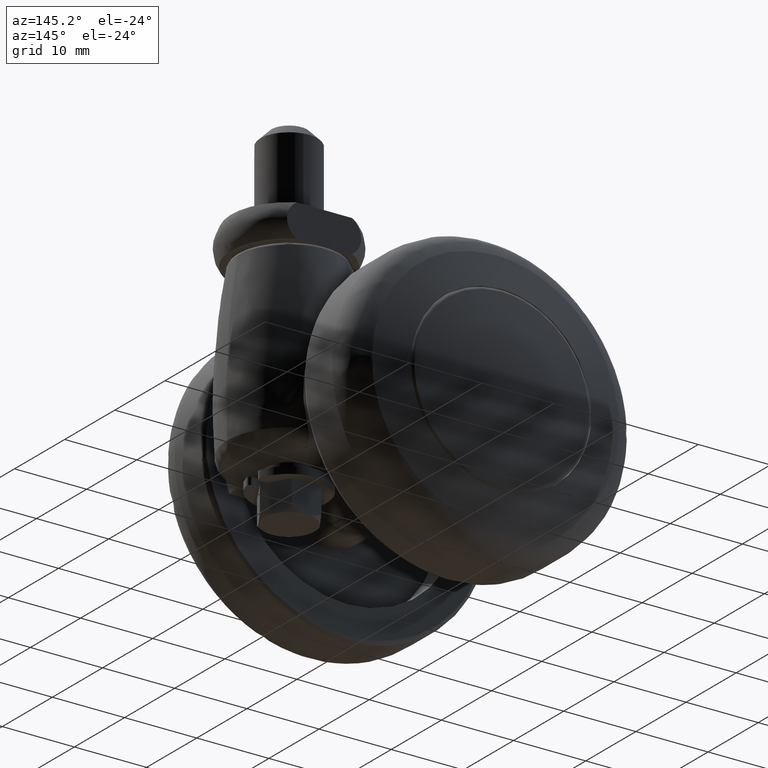
[diagram: clean part render]
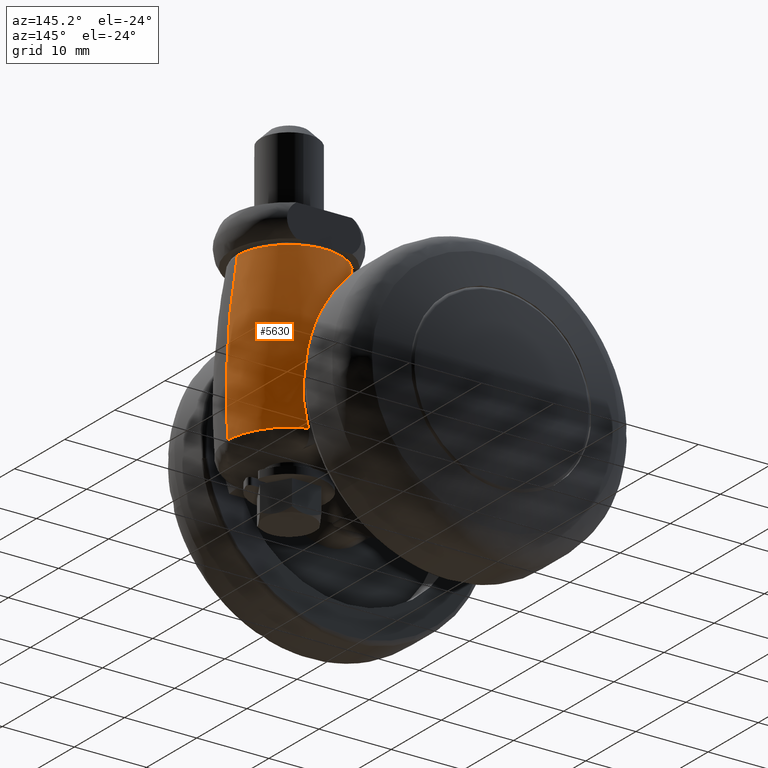
[diagram: same view with one face highlighted and labeled with its STEP entity id]
A machine part, auxiliary view. The second image highlights one B-rep face of the part: STEP entity #5630.
In plain terms, the highlighted face is a freeform B-spline surface patch.
Its self-contained STEP definition (entity closure, byte-faithful):
#4586=CARTESIAN_POINT('',(9.439659694454559,4.521665346927680,18.587814212277301));
#4587=VERTEX_POINT('',#4586);
#4588=CARTESIAN_POINT('',(19.366691423274499,5.682884361773896,18.587715903118639));
#4589=VERTEX_POINT('',#4588);
#4590=CARTESIAN_POINT('',(9.439659694454559,4.521665346927680,18.587814212277301));
#4591=CARTESIAN_POINT('',(12.626187312506072,8.440178779645013,18.587795519163723));
#4592=CARTESIAN_POINT('',(17.388143074723288,6.757211092079039,18.587740234210660));
#4593=CARTESIAN_POINT('',(18.462851126035574,6.377388385980773,18.587727757155616));
#4594=CARTESIAN_POINT('',(19.366691423274506,5.682884361773896,18.587715903118635));
#4602=(BOUNDED_CURVE()B_SPLINE_CURVE(2,(#4590,#4591,#4592,#4593,#4594),.UNSPECIFIED.,.F.,.U.)B_SPLINE_CURVE_WITH_KNOTS((3,2,3),(0.0,0.250000000000000,0.315711812130003),.UNSPECIFIED.)CURVE()GEOMETRIC_REPRESENTATION_ITEM()RATIONAL_B_SPLINE_CURVE((1.0,0.817414323401201,1.0,0.952007857286841,0.929244919899149))REPRESENTATION_ITEM(''));
#4603=EDGE_CURVE('',#4587,#4589,#4602,.T.);
#4632=CARTESIAN_POINT('',(22.166813595573341,0.000018812376593,18.587667433410850));
#4633=VERTEX_POINT('',#4632);
#4649=CARTESIAN_POINT('',(22.071394226125420,1.165590244444835,18.587672524794289));
#4650=VERTEX_POINT('',#4649);
#4651=CARTESIAN_POINT('',(22.071394226125427,1.165590244444835,18.587672524794293));
#4652=CARTESIAN_POINT('',(22.164877195601136,0.598451051408435,18.587669630397315));
#4653=CARTESIAN_POINT('',(22.166774549913359,0.023661910632597,18.587667519826692));
#4654=CARTESIAN_POINT('',(22.166813572233810,0.011840393745363,18.587667476419210));
#4655=CARTESIAN_POINT('',(22.166813595573338,0.000018812376593,18.587667433410854));
#4663=(BOUNDED_CURVE()B_SPLINE_CURVE(2,(#4651,#4652,#4653,#4654,#4655),.UNSPECIFIED.,.F.,.U.)B_SPLINE_CURVE_WITH_KNOTS((3,2,3),(0.466056054314651,0.500000000000000,0.500715487659152),.UNSPECIFIED.)CURVE()GEOMETRIC_REPRESENTATION_ITEM()RATIONAL_B_SPLINE_CURVE((0.957150530652234,0.975209286842431,1.0,0.999477448806623,0.998957888644687))REPRESENTATION_ITEM(''));
#4664=EDGE_CURVE('',#4650,#4633,#4663,.T.);
#4763=CARTESIAN_POINT('',(19.366691423274506,5.682884361773896,18.587715903118635));
#4764=CARTESIAN_POINT('',(21.611062765639634,3.958330575421769,18.587687022575292));
#4765=CARTESIAN_POINT('',(22.071394226125427,1.165590244444835,18.587672524794293));
#4773=(BOUNDED_CURVE()B_SPLINE_CURVE(2,(#4763,#4764,#4765),.UNSPECIFIED.,.F.,.U.)B_SPLINE_CURVE_WITH_KNOTS((3,3),(0.315711812130003,0.466056054314651),.UNSPECIFIED.)CURVE()GEOMETRIC_REPRESENTATION_ITEM()RATIONAL_B_SPLINE_CURVE((0.929244919899149,0.877164837787297,0.957150530652234))REPRESENTATION_ITEM(''));
#4774=EDGE_CURVE('',#4589,#4650,#4773,.T.);
#5540=CARTESIAN_POINT('',(7.798400208376606,4.459132842226264,-5.936490401840427));
#5541=CARTESIAN_POINT('',(7.027441817313171,4.936499813601098,6.996166363190534));
#5542=CARTESIAN_POINT('',(9.085848509317575,3.661962329075581,19.732507406012164));
#5543=CARTESIAN_POINT('',(10.282094210385374,8.470354494549271,-5.936490401840427));
#5544=CARTESIAN_POINT('',(9.777024620017281,9.377137856830858,6.996166363190534));
#5545=CARTESIAN_POINT('',(11.125526221131654,6.956087690240100,19.732507406012161));
#5546=CARTESIAN_POINT('',(15.000000000000007,8.470354494549270,-5.936490401840425));
#5547=CARTESIAN_POINT('',(14.999999999999996,9.377137856830858,6.996166363190535));
#5548=CARTESIAN_POINT('',(15.000000000000002,6.956087690240099,19.732507406012168));
#5549=CARTESIAN_POINT('',(23.470354494549273,8.470354494549273,-5.936490401840427));
#5550=CARTESIAN_POINT('',(24.377137856830867,9.377137856830858,6.996166363190533));
#5551=CARTESIAN_POINT('',(21.956087690240093,6.956087690240097,19.732507406012164));
#5552=CARTESIAN_POINT('',(23.470354494549280,0.0,-5.936490401840425));
#5553=CARTESIAN_POINT('',(24.377137856830860,0.0,6.996166363190535));
#5554=CARTESIAN_POINT('',(21.956087690240100,0.0,19.732507406012168));
#5562=(BOUNDED_SURFACE()B_SPLINE_SURFACE(2,2,((#5540,#5543,#5546,#5549,#5552),(#5541,#5544,#5547,#5550,#5553),(#5542,#5545,#5548,#5551,#5554)),.UNSPECIFIED.,.F.,.F.,.U.)B_SPLINE_SURFACE_WITH_KNOTS((3,3),(3,2,3),(0.0,25.820677454513731),(0.0,9.056522534625486,23.206494211976800),.UNSPECIFIED.)GEOMETRIC_REPRESENTATION_ITEM()RATIONAL_B_SPLINE_SURFACE(((0.828360132667258,0.778082569156552,0.957596302396225,0.677122839063534,0.957596302396225),(0.824616804808810,0.774566443690786,0.953268961213876,0.674062946768988,0.953268961213876),(0.834687579361808,0.784025969600565,0.964910922353611,0.682295056437204,0.964910922353611)))REPRESENTATION_ITEM('')SURFACE());
#5563=ORIENTED_EDGE('',*,*,#4603,.T.);
#5564=ORIENTED_EDGE('',*,*,#4774,.T.);
#5565=ORIENTED_EDGE('',*,*,#4664,.T.);
#5566=CARTESIAN_POINT('',(23.545500375795619,0.000000415544947,-4.766490020556413));
#5567=VERTEX_POINT('',#5566);
#5568=CARTESIAN_POINT('',(23.545500375795616,0.000000415544947,-4.766490020556413));
#5569=CARTESIAN_POINT('',(24.231514440257477,0.000009613960770,6.991781408170732));
#5570=CARTESIAN_POINT('',(22.166813595573341,0.000018812376593,18.587667433410854));
#5578=(BOUNDED_CURVE()B_SPLINE_CURVE(2,(#5568,#5569,#5570),.UNSPECIFIED.,.F.,.U.)B_SPLINE_CURVE_WITH_KNOTS((3,3),(0.431725213207381,0.706914619218559),.UNSPECIFIED.)CURVE()GEOMETRIC_REPRESENTATION_ITEM()RATIONAL_B_SPLINE_CURVE((0.957236199646177,0.953961265613268,0.963886331076210))REPRESENTATION_ITEM(''));
#5579=EDGE_CURVE('',#5567,#4633,#5578,.T.);
#5580=ORIENTED_EDGE('',*,*,#5579,.F.);
#5581=CARTESIAN_POINT('',(17.914251238854799,8.033225897666430,-4.766488081632760));
#5582=VERTEX_POINT('',#5581);
#5583=CARTESIAN_POINT('',(17.914251238854799,8.033225897666430,-4.766488081632760));
#5584=CARTESIAN_POINT('',(23.545500141062210,5.990351159242977,-4.766489051094587));
#5585=CARTESIAN_POINT('',(23.545500375795612,0.000000415544947,-4.766490020556413));
#5593=(BOUNDED_CURVE()B_SPLINE_CURVE(2,(#5583,#5584,#5585),.UNSPECIFIED.,.F.,.U.)B_SPLINE_CURVE_WITH_KNOTS((3,3),(0.0,0.499999978821383),.UNSPECIFIED.)CURVE()GEOMETRIC_REPRESENTATION_ITEM()RATIONAL_B_SPLINE_CURVE((1.0,0.818849067880137,0.999999984653895))REPRESENTATION_ITEM(''));
#5594=EDGE_CURVE('',#5582,#5567,#5593,.T.);
#5595=ORIENTED_EDGE('',*,*,#5594,.F.);
#5596=CARTESIAN_POINT('',(17.914251238854799,8.033225897666430,-4.766488081632760));
#5597=CARTESIAN_POINT('',(17.964849374519659,8.026159747255266,-4.574496176285883));
#5598=CARTESIAN_POINT('',(18.065844856950310,8.012055487081923,-4.191274248274103));
#5599=CARTESIAN_POINT('',(18.193612815433170,7.992507981132593,-3.611558182650756));
#5600=CARTESIAN_POINT('',(18.303447948100320,7.975362582786659,-3.029994953211256));
#5601=CARTESIAN_POINT('',(18.393666552494050,7.961410821290309,-2.446152684390178));
#5602=CARTESIAN_POINT('',(18.464682023155429,7.951260083466485,-1.860173849431246));
#5603=CARTESIAN_POINT('',(18.516350133975109,7.945393235765694,-1.272048339406237));
#5604=CARTESIAN_POINT('',(18.548671913049638,7.944149725146136,-0.681808419899941));
#5605=CARTESIAN_POINT('',(18.561596311673739,7.947733321414963,-0.089472972326079));
#5606=CARTESIAN_POINT('',(18.555085849059800,7.956192880017871,0.504924583251252));
#5607=CARTESIAN_POINT('',(18.529038744296610,7.969485853577063,1.101393116543055));
#5608=CARTESIAN_POINT('',(18.417035665450801,8.013177085907770,2.574246361615903));
#5609=CARTESIAN_POINT('',(17.989439704711799,8.140126958900449,4.920122343095327));
#5610=CARTESIAN_POINT('',(16.829951181986289,8.327858234273302,8.008181435633711));
#5611=CARTESIAN_POINT('',(15.188776719609260,8.313561790770628,10.861334537971659));
#5612=CARTESIAN_POINT('',(13.723629819184319,7.983626591645683,12.646264872619330));
#5613=CARTESIAN_POINT('',(12.832158208006261,7.628510349385972,13.576762584691060));
#5614=CARTESIAN_POINT('',(12.539834614189379,7.500408857850304,13.870858164228530));
#5615=CARTESIAN_POINT('',(12.261599729711650,7.363154842682394,14.155646336376179));
#5616=CARTESIAN_POINT('',(11.933461801571919,7.181000059137823,14.520951445725821));
#5617=CARTESIAN_POINT('',(11.542438205022570,6.926395768029094,15.033700654689010));
#5618=CARTESIAN_POINT('',(11.060391749546019,6.546126812952690,15.754416199563339));
#5619=CARTESIAN_POINT('',(10.618539124290070,6.118971206055660,16.491890894215249));
#5620=CARTESIAN_POINT('',(10.246782781216730,5.695018093816456,17.150087707481848));
#5621=CARTESIAN_POINT('',(9.948461083252280,5.310289373985891,17.679146989258051));
#5622=CARTESIAN_POINT('',(9.681661415089373,4.926353398421328,18.155986986873000));
#5623=CARTESIAN_POINT('',(9.518584085643566,4.653646879959008,18.446981738960709));
#5624=CARTESIAN_POINT('',(9.439659694454559,4.521665346927680,18.587814212277301));
#5625=B_SPLINE_CURVE_WITH_KNOTS('',3,(#5596,#5597,#5598,#5599,#5600,#5601,#5602,#5603,#5604,#5605,#5606,#5607,#5608,#5609,#5610,#5611,#5612,#5613,#5614,#5615,#5616,#5617,#5618,#5619,#5620,#5621,#5622,#5623,#5624),.UNSPECIFIED.,.F.,.U.,(4,1,1,1,1,1,1,1,1,1,1,1,1,1,1,1,1,1,1,1,1,1,1,1,1,1,4),(0.0,0.022195177529130,0.044302277796085,0.066342569409630,0.088338281611850,0.110312447091263,0.132288730927101,0.154291248254057,0.176344373695801,0.198472545946965,0.220700071060746,0.243050928009043,0.363570660417648,0.485842263194881,0.610451499371729,0.729242166990645,0.743653259805624,0.759779303621630,0.777722087102465,0.790693016265232,0.818272311041786,0.855081719881360,0.896407237050095,0.925447238071080,0.951874482085131,0.976708735573518,1.000000000000000),.UNSPECIFIED.);
#5626=EDGE_CURVE('',#5582,#4587,#5625,.T.);
#5627=ORIENTED_EDGE('',*,*,#5626,.T.);
#5628=EDGE_LOOP('',(#5563,#5564,#5565,#5580,#5595,#5627));
#5629=FACE_OUTER_BOUND('',#5628,.T.);
#5630=ADVANCED_FACE('',(#5629),#5562,.T.);